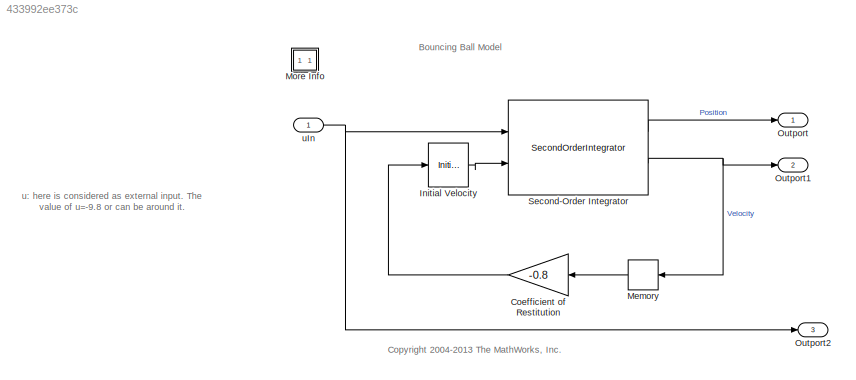
MODEL slx_433992ee373c
KIND model
CONFIG AbsTol = 1E-6
CONFIG EnableMultiTasking = on
CONFIG FixedStep = timeStepMax
CONFIG MaxStep = timeStepMax
CONFIG MinStep = auto
CONFIG RelTol = 1e-3
CONFIG SampleTimeConstraint = Unconstrained
CONFIG SolverName = FixedStepAuto
CONFIG StartTime = 0.0
CONFIG StopTime = timeFinal
BLOCK [Gain] Coefficient of Restitution
  Gain = -0.8
BLOCK [InitialCondition] Initial Velocity
  Value = a2
BLOCK [Memory] Memory
BLOCK [SubSystem] More Info
  OpenFcn = showExample('simulink_general/sldemo_bounceExample')
  Ports = []
  RequestExecContextInheritance = off
BLOCK [Outport] Outport
BLOCK [Outport] Outport1
  Port = 2
BLOCK [Outport] Outport2
  Port = 3
BLOCK [SecondOrderIntegrator] Second-Order Integrator
  ICSourceDXDT = external
  ICX = a1
  LimitX = on
  LowerLimitX = 0.0
  Ports = [2, 2]
  ReinitDXDTwhenXreachesSaturation = on
  StateNameDXDT = 'Velocity'
  StateNameX = 'Position'
BLOCK [Inport] uIn
ANNOTATION (root): Bouncing Ball Model
ANNOTATION (root): <copyright redacted>
ANNOTATION (root): u: here is considered as external input. The value of u=-9.8 or can be around it.
LINE Coefficient of Restitution:1 -> Initial Velocity:1
LINE Initial Velocity:1 -> Second-Order Integrator:2
LINE Memory:1 -> Coefficient of Restitution:1
LINE Second-Order Integrator:1 -> Outport:1
NET Second-Order Integrator:2 -> Memory:1, Outport1:1
NET uIn:1 -> Outport2:1, Second-Order Integrator:1
note: NET lines group one-source signal fan-out (src -> all destinations, sorted); 1:1 wires keep LINE
